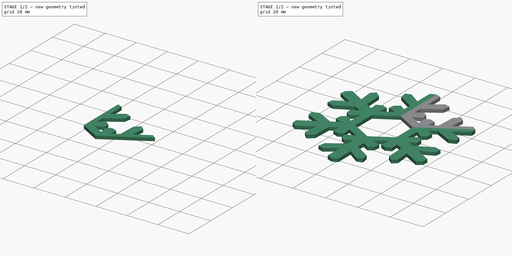
[diagram: build sequence overview — one tinted view per stage of 2, left to right]
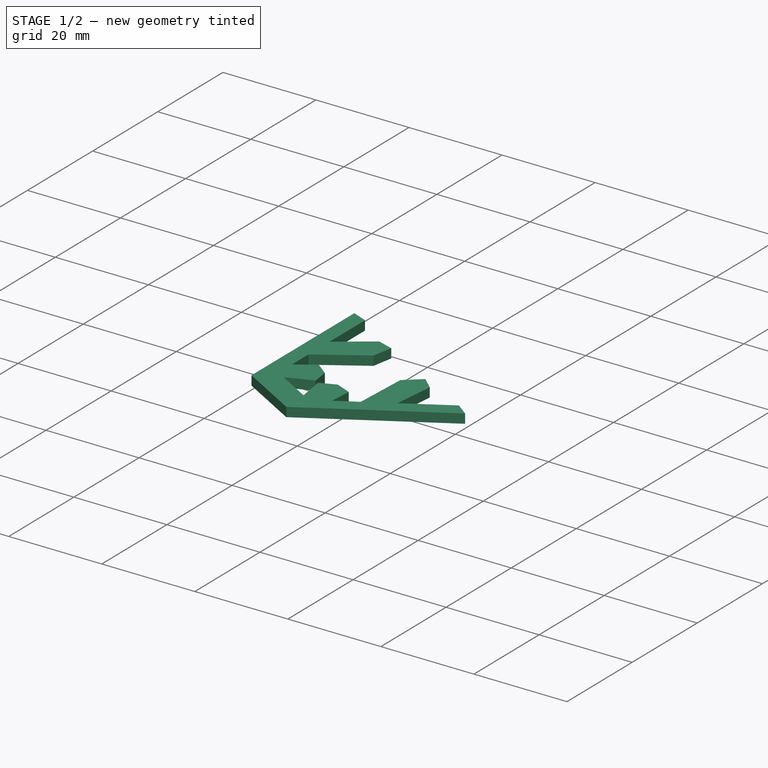
[diagram: stage 1 of 2 — iso view after this stage's code; geometry added in this stage tinted green]
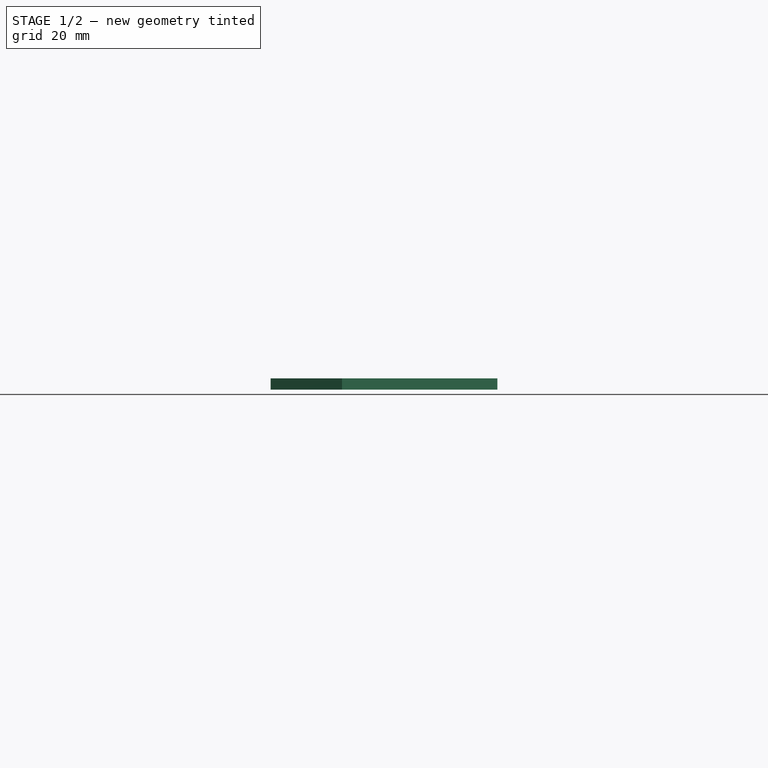
[diagram: stage 1 of 2 — front view after this stage's code; geometry added in this stage tinted green]
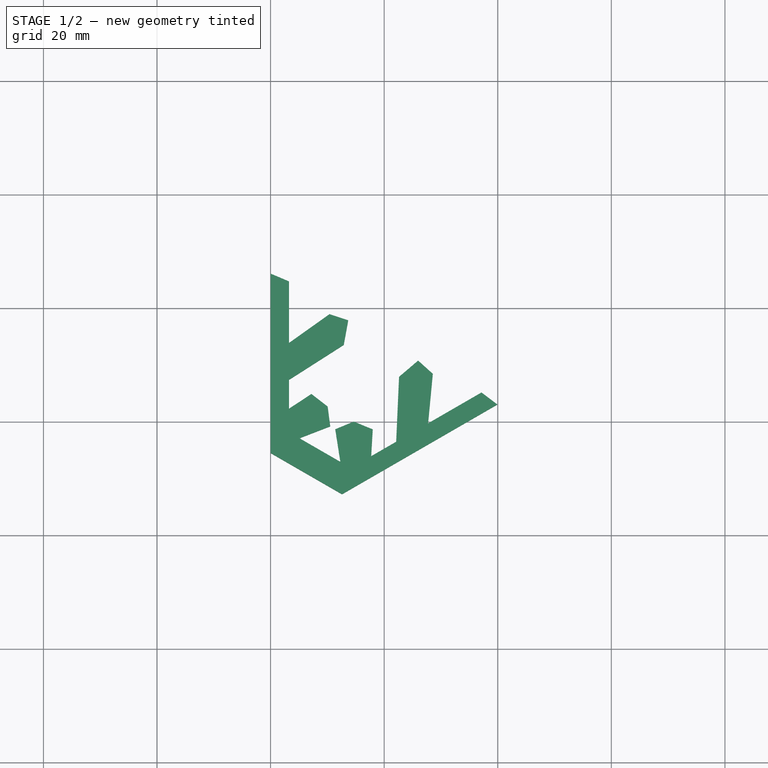
[diagram: stage 1 of 2 — top view after this stage's code; geometry added in this stage tinted green]
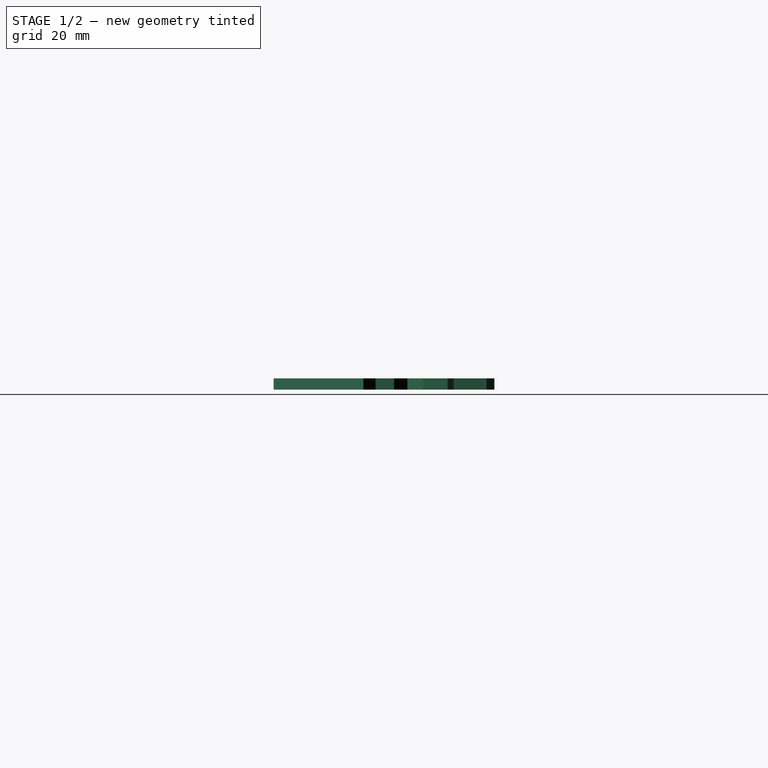
[diagram: stage 1 of 2 — right view after this stage's code; geometry added in this stage tinted green]
FCSTD DOCUMENT  (FreeCAD 0.21R33668 +26 (Git))
Label: snowflake-coin-53299
License: All rights reserved
LicenseURL: http://en.wikipedia.org/wiki/All_rights_reserved
objects: Sketcher::SketchObject×9, App::DocumentObjectGroup×3, PartDesign::Plane×2, Part::Feature×2, Part::FeaturePython×2, App::TextDocument×1, Spreadsheet::Sheet×1, PartDesign::Pad×1, PartDesign::PolarPattern×1, PartDesign::Body×1
note: 19 computed .brp shape members not serialized (recipe doc carries the construction recipe); baked Part::Feature solids carry a one-line shape summary decoded from their .brp

FEATURE [App::TextDocument] Text_document  label="Text document"
  Text = https://publicdomainvectors.org/en/free-clipart/Blue-snowflake/53299.html
FEATURE [Spreadsheet::Sheet] Spreadsheet
  cells = A2='Vector X center; B2='vec_x; C2(dim_vec_x)==-40.84 mm; A3='Vector Y center; B3='vec_y; C3(dim_vec_y)==46.5761 mm; A4='Hexagon circumradius; B4='hex_r; C4(dim_hex_r)==14.5261 mm; A5='Extrude height; B5='ext_h; C5(dim_ext_h)==2.5 mm; D5==2.5 mm; A6='Engrave depth; B6='engrave_h; C6(dim_engrave_h)==dim_ext_h / 2; A7='Pin half-width; B7='pin_w2; C7(dim_pin_w2)==3.24 mm; A8='Pin width; B8='chamfer_r; C8(dim_chamfer_r)==dim_pin_w2 * 2; A9='SVG Scale; B9='svg_scale; C9=0.5; A11='Edge dimple radius; B11='dimple_r; C11(dim_dimple_r)==0.5 mm; A12='Edge dimple count; B12='dimple_count; C12(dim_dimple_count)=64
FEATURE [PartDesign::Plane] DatumPlane  label="BaseXYDatumPlane"
  Length = 98.0294
  MapMode = 5
  ResizeMode = 0
  Support = -> [XY_Plane]
  Width = 109.517
FEATURE [Sketcher::SketchObject] Sketch001  label="CircleSketch"
  FullyConstrained = true
  MapMode = 5
  Support = -> [DatumPlane]
  expr: Constraints[1] = Spreadsheet.dim_hex_r - Spreadsheet.dim_pin_w2
  expr: Constraints[3] = Spreadsheet.dim_hex_r - 1 mm
  sketch-geometry (6):
    g0: Circle CenterX=0 CenterY=0 CenterZ=0 NormalX=0 NormalY=0 NormalZ=1 AngleXU=0 Radius=11.2861
    g1: Circle CenterX=0 CenterY=0 CenterZ=0 NormalX=0 NormalY=0 NormalZ=1 AngleXU=0 Radius=13.5261
    g2: LineSegment StartX=0 StartY=0 StartZ=0 EndX=0 EndY=13.5261 EndZ=0
    g3: LineSegment StartX=0 StartY=0 StartZ=0 EndX=0 EndY=-13.5261 EndZ=0
    g4: LineSegment StartX=0 StartY=0 StartZ=0 EndX=-13.5261 EndY=0 EndZ=0
    g5: LineSegment StartX=0 StartY=0 StartZ=0 EndX=13.5261 EndY=0 EndZ=0
  constraints (16):
    c: Coincident(g0,g-1)
    c: Radius(g0) = 11.2861
    c: Coincident(g1,g0)
    c: Radius(g1) = 13.5261
    c: Coincident(g2,g0)
    c: PointOnObject(g2,g1)
    c: Vertical(g2)
    c: Coincident(g3,g0)
    c: PointOnObject(g3,g1)
    c: Vertical(g3)
    c: Coincident(g4,g0)
    c: PointOnObject(g4,g1)
    c: Horizontal(g4)
    c: Coincident(g5,g0)
    c: PointOnObject(g5,g1)
    c: Horizontal(g5)
FEATURE [PartDesign::Plane] DatumPlane001  label="ProfileYZDatumPlane"
  Length = 105.837
  MapMode = 5
  Placement = pos=(0,0,0) rot=(0.57735,0.57735,0.57735;2.0944rad)
  ResizeMode = 0
  Support = -> [YZ_Plane]
  Width = 63.5833
FEATURE [Sketcher::SketchObject] Sketch  label="CoinProfileSketch"
  FullyConstrained = true
  MapMode = 5
  Placement = pos=(0,0,0) rot=(0.57735,0.57735,0.57735;2.0944rad)
  Support = -> [DatumPlane001]
  expr: Constraints[10] = Spreadsheet.dim_pin_w2
  expr: Constraints[12] = Spreadsheet.dim_ext_h
  expr: Constraints[13] = Spreadsheet.dim_hex_r
  expr: Constraints[14] = Spreadsheet.dim_hex_r
  expr: Constraints[15] = Spreadsheet.dim_ext_h
  expr: Constraints[16] = Spreadsheet.dim_chamfer_r
  sketch-geometry (11):
    g0: LineSegment StartX=3e-16 StartY=0 StartZ=0 EndX=3e-16 EndY=-2.5 EndZ=0
    g1: LineSegment StartX=6.48 StartY=0 StartZ=0 EndX=14.5261 EndY=-3.24 EndZ=0
    g2: LineSegment StartX=14.5261 StartY=-3.24 StartZ=0 EndX=14.5261 EndY=0.74 EndZ=0
    g3: LineSegment StartX=17.7661 StartY=0 StartZ=0 EndX=14.5261 EndY=0 EndZ=0
    g4: LineSegment StartX=14.5261 StartY=0 StartZ=0 EndX=14.5261 EndY=-3.24 EndZ=0
    g5: LineSegment StartX=14.5261 StartY=0.74 StartZ=0 EndX=14.5261 EndY=-2.5 EndZ=0
    g6: LineSegment StartX=3e-16 StartY=0 StartZ=0 EndX=6.48 EndY=0 EndZ=0
    g7: LineSegment StartX=6.48 StartY=0 StartZ=0 EndX=14.5261 EndY=0 EndZ=0
    g8: LineSegment StartX=14.5261 StartY=-2.5 StartZ=0 EndX=6.48 EndY=-2.5 EndZ=0
    g9: LineSegment StartX=6.48 StartY=-2.5 StartZ=0 EndX=0 EndY=-2.5 EndZ=0
    g10: LineSegment StartX=6.48 StartY=-2.5 StartZ=0 EndX=14.5261 EndY=0.74 EndZ=0
  constraints (31):
    c: Vertical(g0)
    c: Coincident(g1,g2)
    c: Vertical(g2)
    c: Horizontal(g3)
    c: Coincident(g4,g3)
    c: Coincident(g4,g1)
    c: Coincident(g5,g2)
    c: Vertical(g5)
    c: Vertical(g4)
    c: Equal(g3,g4)
    c: DistanceY(g5,g5) = 3.24
    c: Equal(g5,g4)
    c: DistanceY(g5,g3) = 2.5
    c: DistanceX(g0,g5) = 14.5261
    c: DistanceX(g-1,g3) = 14.5261
    c: DistanceY(g0,g-1) = 2.5
    c: DistanceX(g1) = 6.48
    c: Coincident(g6,g0)
    c: Coincident(g6,g1)
    c: Horizontal(g6)
    c: Coincident(g7,g1)
    c: Coincident(g7,g3)
    c: Horizontal(g7)
    c: Coincident(g8,g5)
    c: Horizontal(g8)
    c: Coincident(g9,g8)
    c: Coincident(g9,g0)
    c: Horizontal(g9)
    c: Coincident(g10,g9)
    c: Coincident(g10,g2)
    c: Equal(g9,g6)
FEATURE [Sketcher::SketchObject] Sketch002  label="CoinEdgeProfileSketch"
  FullyConstrained = true
  MapMode = 5
  Placement = pos=(0,0,0) rot=(0.57735,0.57735,0.57735;2.0944rad)
  Support = -> [DatumPlane001]
  expr: Constraints[10] = Spreadsheet.dim_hex_r
  expr: Constraints[11] = Spreadsheet.dim_ext_h
  expr: Constraints[17] = Spreadsheet.dim_chamfer_r
  expr: Constraints[6] = Spreadsheet.dim_pin_w2
  expr: Constraints[8] = Spreadsheet.dim_ext_h
  expr: Constraints[9] = Spreadsheet.dim_hex_r
  sketch-geometry (13):
    g0: LineSegment StartX=0 StartY=-1e-16 StartZ=0 EndX=0 EndY=-2.5 EndZ=0
    g1: LineSegment StartX=14.5261 StartY=-3.24 StartZ=0 EndX=14.5261 EndY=0.74 EndZ=0
    g2: LineSegment StartX=14.5261 StartY=-1e-16 StartZ=0 EndX=14.5261 EndY=-3.24 EndZ=0
    g3: LineSegment StartX=14.5261 StartY=0.74 StartZ=0 EndX=14.5261 EndY=-2.5 EndZ=0
    g4: LineSegment StartX=0 StartY=-1e-16 StartZ=0 EndX=13.5261 EndY=-1e-16 EndZ=0
    g5: LineSegment StartX=13.5261 StartY=-1e-16 StartZ=0 EndX=13.5261 EndY=-2.5 EndZ=0
    g6: LineSegment StartX=13.5261 StartY=-1e-16 StartZ=0 EndX=6.48 EndY=-1e-16 EndZ=0
    g7: LineSegment StartX=6.48 StartY=-1e-16 StartZ=0 EndX=14.5261 EndY=-3.24 EndZ=0
    g8: LineSegment StartX=6.48 StartY=-1e-16 StartZ=0 EndX=14.5261 EndY=-1e-16 EndZ=0
    g9: LineSegment StartX=14.5261 StartY=-2.5 StartZ=0 EndX=20.5722 EndY=-2.5 EndZ=0
    g10: LineSegment StartX=13.5261 StartY=-2.5 StartZ=0 EndX=0 EndY=-2.5 EndZ=0
    g11: LineSegment StartX=20.5722 StartY=-2.5 StartZ=0 EndX=14.5261 EndY=0.74 EndZ=0
    g12: LineSegment StartX=20.5722 StartY=-2.5 StartZ=0 EndX=13.5261 EndY=-2.5 EndZ=0
  constraints (36):
    c: Vertical(g0)
    c: Coincident(g0,g4)
    c: Vertical(g1)
    c: Coincident(g3,g1)
    c: Vertical(g3)
    c: Vertical(g2)
    c: DistanceY(g3,g3) = 3.24
    c: Equal(g3,g2)
    c: DistanceY(g3,g2) = 2.5
    c: DistanceX(g0,g3) = 14.5261
    c: DistanceX(g-1,g2) = 14.5261
    c: DistanceY(g0,g-1) = 2.5
    c: Horizontal(g4)
    c: Vertical(g5)
    c: DistanceX(g4,g2) = 1
    c: Coincident(g6,g5)
    c: Horizontal(g6)
    c: DistanceX(g0,g6) = 6.48
    c: Coincident(g7,g6)
    c: Coincident(g7,g1)
    c: Coincident(g8,g6)
    c: Coincident(g8,g2)
    c: Horizontal(g8)
    c: Coincident(g4,g5)
    c: Coincident(g2,g1)
    c: Coincident(g9,g3)
    c: Horizontal(g9)
    c: Coincident(g10,g5)
    c: Coincident(g10,g0)
    c: Horizontal(g10)
    c: Coincident(g11,g9)
    c: Coincident(g11,g1)
    c: Coincident(g12,g11)
    c: Coincident(g12,g5)
    c: Horizontal(g12)
    c: Equal(g12,g6)
FEATURE [Sketcher::SketchObject] Sketch004  label="EdgeDimpleSketch"
  FullyConstrained = true
  MapMode = 5
  Support = -> [DatumPlane]
  expr: Constraints[2] = Spreadsheet.dim_hex_r
  sketch-geometry (2):
    g0: LineSegment StartX=0 StartY=0 StartZ=0 EndX=14.5261 EndY=0 EndZ=0
    g1: Circle CenterX=14.5261 CenterY=0 CenterZ=0 NormalX=0 NormalY=0 NormalZ=1 AngleXU=0 Radius=0.5
  constraints (5):
    c: Horizontal(g0)
    c: Coincident(g1,g0)
    c: DistanceX(g0,g0) = 14.5261
    c: Coincident(g0,g-1)
    c: Radius(g1) = 0.5
FEATURE [App::DocumentObjectGroup] Group008  label="VectorDetailGroup"
FEATURE [Part::Feature] path2909
  shape: bbox 161.6 x 184.5 x 2e-07 mm, 0 faces, 0 solids (baked)
FEATURE [Part::Feature] path2909001
  shape: bbox 50.18 x 57.94 x 2e-07 mm, 0 faces, 0 solids (baked)
FEATURE [App::DocumentObjectGroup] Group007  label="VectorOutlineGroup"
  Group = -> [path2909,path2909001]
FEATURE [Part::FeaturePython] Clone  label="path2909-050"  # Draft clone (typed FeaturePython)
  AttacherType = Attacher::AttachEngine3D
  Fuse = false
  Objects = -> [path2909]
  Placement = pos=(-40.84,46.5761,0) rot=(0,0,1;0rad)
  Scale = (0.5,0.5,0.5)
  expr: .Placement.Base.x = Spreadsheet.dim_vec_x
  expr: .Placement.Base.y = Spreadsheet.dim_vec_y
FEATURE [Part::FeaturePython] Clone001  label="pentpath-050"  # Draft clone (typed FeaturePython)
  AttacherType = Attacher::AttachEngine3D
  Fuse = false
  Objects = -> [path2909001]
  Scale = (0.5,0.5,0.5)
FEATURE [App::DocumentObjectGroup] Group  label="ResizeGroup"
  Group = -> [Clone,Clone001]
FEATURE [Sketcher::SketchObject] Sketch005  label="VectorOutlineSketch"
  FullyConstrained = false
  MapMode = 5
  Support = -> [DatumPlane]
  sketch-geometry (139):
    g0: BSplineCurve PolesCount=2 KnotsCount=2 Degree=1 IsPeriodic=0
    g1: BSplineCurve PolesCount=2 KnotsCount=2 Degree=1 IsPeriodic=0
    g2: BSplineCurve PolesCount=2 KnotsCount=2 Degree=1 IsPeriodic=0
    g3: BSplineCurve PolesCount=2 KnotsCount=2 Degree=1 IsPeriodic=0
    g4: BSplineCurve PolesCount=2 KnotsCount=2 Degree=1 IsPeriodic=0
    g5: BSplineCurve PolesCount=2 KnotsCount=2 Degree=1 IsPeriodic=0
    g6: BSplineCurve PolesCount=2 KnotsCount=2 Degree=1 IsPeriodic=0
    g7: BSplineCurve PolesCount=2 KnotsCount=2 Degree=1 IsPeriodic=0
    g8: BSplineCurve PolesCount=2 KnotsCount=2 Degree=1 IsPeriodic=0
    g9: BSplineCurve PolesCount=2 KnotsCount=2 Degree=1 IsPeriodic=0
    g10: BSplineCurve PolesCount=2 KnotsCount=2 Degree=1 IsPeriodic=0
    g11: BSplineCurve PolesCount=2 KnotsCount=2 Degree=1 IsPeriodic=0
    g12: BSplineCurve PolesCount=2 KnotsCount=2 Degree=1 IsPeriodic=0
    g13: BSplineCurve PolesCount=2 KnotsCount=2 Degree=1 IsPeriodic=0
    g14: BSplineCurve PolesCount=2 KnotsCount=2 Degree=1 IsPeriodic=0
    g15: BSplineCurve PolesCount=2 KnotsCount=2 Degree=1 IsPeriodic=0
    g16: BSplineCurve PolesCount=2 KnotsCount=2 Degree=1 IsPeriodic=0
    g17: BSplineCurve PolesCount=2 KnotsCount=2 Degree=1 IsPeriodic=0
    g18: BSplineCurve PolesCount=2 KnotsCount=2 Degree=1 IsPeriodic=0
    g19: BSplineCurve PolesCount=2 KnotsCount=2 Degree=1 IsPeriodic=0
    g20: BSplineCurve PolesCount=2 KnotsCount=2 Degree=1 IsPeriodic=0
    g21: BSplineCurve PolesCount=2 KnotsCount=2 Degree=1 IsPeriodic=0
    g22: BSplineCurve PolesCount=2 KnotsCount=2 Degree=1 IsPeriodic=0
    g23: BSplineCurve PolesCount=2 KnotsCount=2 Degree=1 IsPeriodic=0
    g24: BSplineCurve PolesCount=2 KnotsCount=2 Degree=1 IsPeriodic=0
    g25: BSplineCurve PolesCount=2 KnotsCount=2 Degree=1 IsPeriodic=0
    g26: BSplineCurve PolesCount=2 KnotsCount=2 Degree=1 IsPeriodic=0
    g27: BSplineCurve PolesCount=2 KnotsCount=2 Degree=1 IsPeriodic=0
    g28: BSplineCurve PolesCount=2 KnotsCount=2 Degree=1 IsPeriodic=0
    g29: BSplineCurve PolesCount=2 KnotsCount=2 Degree=1 IsPeriodic=0
    g30: BSplineCurve PolesCount=2 KnotsCount=2 Degree=1 IsPeriodic=0
    g31: BSplineCurve PolesCount=2 KnotsCount=2 Degree=1 IsPeriodic=0
    g32: BSplineCurve PolesCount=2 KnotsCount=2 Degree=1 IsPeriodic=0
    g33: BSplineCurve PolesCount=2 KnotsCount=2 Degree=1 IsPeriodic=0
    g34: BSplineCurve PolesCount=2 KnotsCount=2 Degree=1 IsPeriodic=0
    g35: BSplineCurve PolesCount=2 KnotsCount=2 Degree=1 IsPeriodic=0
    g36: BSplineCurve PolesCount=2 KnotsCount=2 Degree=1 IsPeriodic=0
    g37: BSplineCurve PolesCount=2 KnotsCount=2 Degree=1 IsPeriodic=0
    g38: BSplineCurve PolesCount=2 KnotsCount=2 Degree=1 IsPeriodic=0
    g39: BSplineCurve PolesCount=2 KnotsCount=2 Degree=1 IsPeriodic=0
    g40: BSplineCurve PolesCount=2 KnotsCount=2 Degree=1 IsPeriodic=0
    g41: BSplineCurve PolesCount=2 KnotsCount=2 Degree=1 IsPeriodic=0
    g42: BSplineCurve PolesCount=2 KnotsCount=2 Degree=1 IsPeriodic=0
    g43: BSplineCurve PolesCount=2 KnotsCount=2 Degree=1 IsPeriodic=0
    g44: BSplineCurve PolesCount=2 KnotsCount=2 Degree=1 IsPeriodic=0
    g45: BSplineCurve PolesCount=2 KnotsCount=2 Degree=1 IsPeriodic=0
    g46: BSplineCurve PolesCount=2 KnotsCount=2 Degree=1 IsPeriodic=0
    g47: BSplineCurve PolesCount=2 KnotsCount=2 Degree=1 IsPeriodic=0
    g48: BSplineCurve PolesCount=2 KnotsCount=2 Degree=1 IsPeriodic=0
    g49: BSplineCurve PolesCount=2 KnotsCount=2 Degree=1 IsPeriodic=0
    g50: BSplineCurve PolesCount=2 KnotsCount=2 Degree=1 IsPeriodic=0
    g51: BSplineCurve PolesCount=2 KnotsCount=2 Degree=1 IsPeriodic=0
    g52: BSplineCurve PolesCount=2 KnotsCount=2 Degree=1 IsPeriodic=0
    g53: BSplineCurve PolesCount=2 KnotsCount=2 Degree=1 IsPeriodic=0
    g54: BSplineCurve PolesCount=2 KnotsCount=2 Degree=1 IsPeriodic=0
    g55: BSplineCurve PolesCount=2 KnotsCount=2 Degree=1 IsPeriodic=0
    g56: BSplineCurve PolesCount=2 KnotsCount=2 Degree=1 IsPeriodic=0
    g57: BSplineCurve PolesCount=2 KnotsCount=2 Degree=1 IsPeriodic=0
    g58: BSplineCurve PolesCount=2 KnotsCount=2 Degree=1 IsPeriodic=0
    g59: BSplineCurve PolesCount=2 KnotsCount=2 Degree=1 IsPeriodic=0
    g60: BSplineCurve PolesCount=2 KnotsCount=2 Degree=1 IsPeriodic=0
    g61: BSplineCurve PolesCount=2 KnotsCount=2 Degree=1 IsPeriodic=0
    g62: BSplineCurve PolesCount=2 KnotsCount=2 Degree=1 IsPeriodic=0
    g63: BSplineCurve PolesCount=2 KnotsCount=2 Degree=1 IsPeriodic=0
    g64: BSplineCurve PolesCount=2 KnotsCount=2 Degree=1 IsPeriodic=0
    g65: BSplineCurve PolesCount=2 KnotsCount=2 Degree=1 IsPeriodic=0
    g66: BSplineCurve PolesCount=2 KnotsCount=2 Degree=1 IsPeriodic=0
    g67: BSplineCurve PolesCount=2 KnotsCount=2 Degree=1 IsPeriodic=0
    g68: BSplineCurve PolesCount=2 KnotsCount=2 Degree=1 IsPeriodic=0
    g69: BSplineCurve PolesCount=2 KnotsCount=2 Degree=1 IsPeriodic=0
    g70: BSplineCurve PolesCount=2 KnotsCount=2 Degree=1 IsPeriodic=0
    g71: BSplineCurve PolesCount=2 KnotsCount=2 Degree=1 IsPeriodic=0
    g72: BSplineCurve PolesCount=2 KnotsCount=2 Degree=1 IsPeriodic=0
    g73: BSplineCurve PolesCount=2 KnotsCount=2 Degree=1 IsPeriodic=0
    g74: BSplineCurve PolesCount=2 KnotsCount=2 Degree=1 IsPeriodic=0
    g75: BSplineCurve PolesCount=2 KnotsCount=2 Degree=1 IsPeriodic=0
    g76: BSplineCurve PolesCount=2 KnotsCount=2 Degree=1 IsPeriodic=0
    g77: BSplineCurve PolesCount=2 KnotsCount=2 Degree=1 IsPeriodic=0
    g78: BSplineCurve PolesCount=2 KnotsCount=2 Degree=1 IsPeriodic=0
    g79: BSplineCurve PolesCount=2 KnotsCount=2 Degree=1 IsPeriodic=0
    g80: BSplineCurve PolesCount=2 KnotsCount=2 Degree=1 IsPeriodic=0
    g81: BSplineCurve PolesCount=2 KnotsCount=2 Degree=1 IsPeriodic=0
    g82: BSplineCurve PolesCount=2 KnotsCount=2 Degree=1 IsPeriodic=0
    g83: BSplineCurve PolesCount=2 KnotsCount=2 Degree=1 IsPeriodic=0
    g84: BSplineCurve PolesCount=2 KnotsCount=2 Degree=1 IsPeriodic=0
    g85: BSplineCurve PolesCount=2 KnotsCount=2 Degree=1 IsPeriodic=0
    g86: BSplineCurve PolesCount=2 KnotsCount=2 Degree=1 IsPeriodic=0
    g87: BSplineCurve PolesCount=2 KnotsCount=2 Degree=1 IsPeriodic=0
    g88: BSplineCurve PolesCount=2 KnotsCount=2 Degree=1 IsPeriodic=0
    g89: BSplineCurve PolesCount=2 KnotsCount=2 Degree=1 IsPeriodic=0
    g90: BSplineCurve PolesCount=2 KnotsCount=2 Degree=1 IsPeriodic=0
    g91: BSplineCurve PolesCount=2 KnotsCount=2 Degree=1 IsPeriodic=0
    g92: BSplineCurve PolesCount=2 KnotsCount=2 Degree=1 IsPeriodic=0
    g93: BSplineCurve PolesCount=2 KnotsCount=2 Degree=1 IsPeriodic=0
    g94: BSplineCurve PolesCount=2 KnotsCount=2 Degree=1 IsPeriodic=0
    g95: BSplineCurve PolesCount=2 KnotsCount=2 Degree=1 IsPeriodic=0
    g96: BSplineCurve PolesCount=2 KnotsCount=2 Degree=1 IsPeriodic=0
    g97: BSplineCurve PolesCount=2 KnotsCount=2 Degree=1 IsPeriodic=0
    g98: BSplineCurve PolesCount=2 KnotsCount=2 Degree=1 IsPeriodic=0
    g99: BSplineCurve PolesCount=2 KnotsCount=2 Degree=1 IsPeriodic=0
    g100: BSplineCurve PolesCount=2 KnotsCount=2 Degree=1 IsPeriodic=0
    g101: BSplineCurve PolesCount=2 KnotsCount=2 Degree=1 IsPeriodic=0
    g102: BSplineCurve PolesCount=2 KnotsCount=2 Degree=1 IsPeriodic=0
    g103: BSplineCurve PolesCount=2 KnotsCount=2 Degree=1 IsPeriodic=0
    g104: BSplineCurve PolesCount=2 KnotsCount=2 Degree=1 IsPeriodic=0
    g105: BSplineCurve PolesCount=2 KnotsCount=2 Degree=1 IsPeriodic=0
    g106: BSplineCurve PolesCount=2 KnotsCount=2 Degree=1 IsPeriodic=0
    g107: BSplineCurve PolesCount=2 KnotsCount=2 Degree=1 IsPeriodic=0
    g108: BSplineCurve PolesCount=2 KnotsCount=2 Degree=1 IsPeriodic=0
    g109: BSplineCurve PolesCount=2 KnotsCount=2 Degree=1 IsPeriodic=0
    g110: BSplineCurve PolesCount=2 KnotsCount=2 Degree=1 IsPeriodic=0
    g111: BSplineCurve PolesCount=2 KnotsCount=2 Degree=1 IsPeriodic=0
    g112: BSplineCurve PolesCount=2 KnotsCount=2 Degree=1 IsPeriodic=0
    g113: BSplineCurve PolesCount=2 KnotsCount=2 Degree=1 IsPeriodic=0
    g114: BSplineCurve PolesCount=2 KnotsCount=2 Degree=1 IsPeriodic=0
    g115: BSplineCurve PolesCount=2 KnotsCount=2 Degree=1 IsPeriodic=0
    g116: BSplineCurve PolesCount=2 KnotsCount=2 Degree=1 IsPeriodic=0
    g117: BSplineCurve PolesCount=2 KnotsCount=2 Degree=1 IsPeriodic=0
    g118: BSplineCurve PolesCount=2 KnotsCount=2 Degree=1 IsPeriodic=0
    g119: BSplineCurve PolesCount=2 KnotsCount=2 Degree=1 IsPeriodic=0
    g120: BSplineCurve PolesCount=2 KnotsCount=2 Degree=1 IsPeriodic=0
    g121: BSplineCurve PolesCount=2 KnotsCount=2 Degree=1 IsPeriodic=0
    g122: BSplineCurve PolesCount=2 KnotsCount=2 Degree=1 IsPeriodic=0
    g123: BSplineCurve PolesCount=2 KnotsCount=2 Degree=1 IsPeriodic=0
    g124: BSplineCurve PolesCount=2 KnotsCount=2 Degree=1 IsPeriodic=0
    g125: BSplineCurve PolesCount=2 KnotsCount=2 Degree=1 IsPeriodic=0
    g126: BSplineCurve PolesCount=2 KnotsCount=2 Degree=1 IsPeriodic=0
    g127: BSplineCurve PolesCount=2 KnotsCount=2 Degree=1 IsPeriodic=0
    g128: BSplineCurve PolesCount=2 KnotsCount=2 Degree=1 IsPeriodic=0
    g129: BSplineCurve PolesCount=2 KnotsCount=2 Degree=1 IsPeriodic=0
    g130: BSplineCurve PolesCount=2 KnotsCount=2 Degree=1 IsPeriodic=0
    g131: BSplineCurve PolesCount=2 KnotsCount=2 Degree=1 IsPeriodic=0
    g132: BSplineCurve PolesCount=2 KnotsCount=2 Degree=1 IsPeriodic=0
    g133: BSplineCurve PolesCount=2 KnotsCount=2 Degree=1 IsPeriodic=0
    g134: BSplineCurve PolesCount=2 KnotsCount=2 Degree=1 IsPeriodic=0
    g135: BSplineCurve PolesCount=2 KnotsCount=2 Degree=1 IsPeriodic=0
    g136: BSplineCurve PolesCount=2 KnotsCount=2 Degree=1 IsPeriodic=0
    g137: BSplineCurve PolesCount=2 KnotsCount=2 Degree=1 IsPeriodic=0
    g138: BSplineCurve PolesCount=2 KnotsCount=2 Degree=1 IsPeriodic=0
  constraints (139):
    c: Coincident(g0,g1)
    c: Coincident(g1,g2)
    c: Coincident(g2,g3)
    c: Coincident(g3,g4)
    c: Coincident(g4,g5)
    c: Coincident(g5,g6)
    c: Coincident(g6,g7)
    c: Coincident(g7,g8)
    c: Coincident(g8,g9)
    c: Coincident(g9,g10)
    c: Coincident(g10,g11)
    c: Coincident(g11,g12)
    c: Coincident(g12,g13)
    c: Coincident(g13,g14)
    c: Coincident(g14,g15)
    c: Coincident(g15,g16)
    c: Coincident(g16,g17)
    c: Coincident(g17,g18)
    c: Coincident(g18,g19)
    c: Coincident(g19,g20)
    c: Coincident(g20,g21)
    c: Coincident(g21,g22)
    c: Coincident(g22,g23)
    c: Coincident(g23,g24)
    c: Coincident(g24,g25)
    c: Coincident(g25,g26)
    c: Coincident(g26,g27)
    c: Coincident(g27,g28)
    c: Coincident(g28,g29)
    c: Coincident(g29,g30)
    c: Coincident(g30,g31)
    c: Coincident(g31,g32)
    c: Coincident(g32,g33)
    c: Coincident(g33,g34)
    c: Coincident(g34,g35)
    c: Coincident(g35,g36)
    c: Coincident(g36,g37)
    c: Coincident(g37,g38)
    c: Coincident(g38,g39)
    c: Coincident(g39,g40)
    c: Coincident(g40,g41)
    c: Coincident(g41,g42)
    c: Coincident(g42,g43)
    c: Coincident(g43,g44)
    c: Coincident(g44,g45)
    c: Coincident(g45,g46)
    c: Coincident(g46,g47)
    c: Coincident(g47,g48)
    c: Coincident(g48,g49)
    c: Coincident(g49,g50)
    c: Coincident(g50,g51)
    c: Coincident(g51,g52)
    c: Coincident(g52,g53)
    c: Coincident(g53,g54)
    c: Coincident(g54,g55)
    c: Coincident(g55,g56)
    c: Coincident(g56,g57)
    c: Coincident(g57,g58)
    c: Coincident(g58,g59)
    c: Coincident(g59,g60)
    c: Coincident(g60,g61)
    c: Coincident(g61,g62)
    c: Coincident(g62,g63)
    c: Coincident(g63,g64)
    c: Coincident(g64,g65)
    c: Coincident(g65,g66)
    c: Coincident(g66,g67)
    c: Coincident(g67,g68)
    c: Coincident(g68,g69)
    c: Coincident(g69,g70)
    c: Coincident(g70,g71)
    c: Coincident(g71,g72)
    c: Coincident(g72,g73)
    c: Coincident(g73,g74)
    c: Coincident(g74,g75)
    c: Coincident(g75,g76)
    c: Coincident(g76,g77)
    c: Coincident(g77,g78)
    c: Coincident(g78,g79)
    c: Coincident(g79,g80)
    c: Coincident(g80,g81)
    c: Coincident(g81,g82)
    c: Coincident(g82,g83)
    c: Coincident(g83,g84)
    c: Coincident(g84,g85)
    c: Coincident(g85,g86)
    c: Coincident(g86,g87)
    c: Coincident(g87,g88)
    c: Coincident(g88,g89)
    c: Coincident(g89,g90)
    c: Coincident(g90,g91)
    c: Coincident(g91,g92)
    c: Coincident(g92,g93)
    c: Coincident(g93,g94)
    c: Coincident(g94,g95)
    c: Coincident(g95,g96)
    c: Coincident(g96,g97)
    c: Coincident(g97,g98)
    c: Coincident(g98,g99)
    c: Coincident(g99,g100)
    c: Coincident(g100,g101)
    c: Coincident(g101,g102)
    c: Coincident(g102,g103)
    c: Coincident(g103,g104)
    c: Coincident(g104,g105)
    c: Coincident(g105,g106)
    c: Coincident(g106,g107)
    c: Coincident(g107,g108)
    c: Coincident(g108,g109)
    c: Coincident(g109,g110)
    c: Coincident(g110,g111)
    c: Coincident(g111,g112)
    c: Coincident(g112,g113)
    c: Coincident(g113,g114)
    c: Coincident(g114,g115)
    c: Coincident(g115,g116)
    c: Coincident(g116,g117)
    c: Coincident(g117,g118)
    c: Coincident(g118,g119)
    c: Coincident(g119,g120)
    c: Coincident(g120,g121)
    c: Coincident(g121,g122)
    c: Coincident(g122,g123)
    c: Coincident(g123,g124)
    c: Coincident(g124,g125)
    c: Coincident(g125,g126)
    c: Coincident(g126,g127)
    c: Coincident(g127,g128)
    c: Coincident(g128,g129)
    c: Coincident(g129,g130)
    c: Coincident(g130,g131)
    c: Coincident(g131,g132)
    c: Coincident(g132,g133)
    c: Coincident(g133,g134)
    c: Coincident(g134,g135)
    c: Coincident(g135,g136)
    c: Coincident(g136,g137)
    c: Coincident(g137,g138)
    c: Coincident(g138,g0)
FEATURE [Sketcher::SketchObject] Sketch006  label="TestHexagonSketch"
  FullyConstrained = true
  MapMode = 5
  Support = -> [DatumPlane]
  sketch-geometry (12):
    g0: LineSegment StartX=53.42 StartY=-53.8392 StartZ=0 EndX=53.42 EndY=-39.3131 EndZ=0
    g1: LineSegment StartX=53.42 StartY=-39.3131 StartZ=0 EndX=40.84 EndY=-32.05 EndZ=0
    g2: LineSegment StartX=40.84 StartY=-32.05 StartZ=0 EndX=28.26 EndY=-39.3131 EndZ=0
    g3: LineSegment StartX=28.26 StartY=-39.3131 StartZ=0 EndX=28.26 EndY=-53.8392 EndZ=0
    g4: LineSegment StartX=28.26 StartY=-53.8392 StartZ=0 EndX=40.84 EndY=-61.1023 EndZ=0
    g5: LineSegment StartX=40.84 StartY=-61.1023 StartZ=0 EndX=53.42 EndY=-53.8392 EndZ=0
    g6: Circle CenterX=40.84 CenterY=-46.5761 CenterZ=0 NormalX=0 NormalY=0 NormalZ=1 AngleXU=0 Radius=14.5261
    g7: LineSegment StartX=40.84 StartY=-32.05 StartZ=0 EndX=40.84 EndY=0 EndZ=0
    g8: LineSegment StartX=40.84 StartY=-46.5761 StartZ=0 EndX=0 EndY=-46.5761 EndZ=0
    g9: LineSegment StartX=28.26 StartY=-53.8392 StartZ=0 EndX=0 EndY=-53.8392 EndZ=0
    g10: LineSegment StartX=28.26 StartY=-39.3131 StartZ=0 EndX=28.26 EndY=0 EndZ=0
    g11: LineSegment StartX=40.84 StartY=-32.05 StartZ=0 EndX=0 EndY=-32.05 EndZ=0
  constraints (36):
    c: Coincident(g0,g1)
    c: Coincident(g1,g2)
    c: Coincident(g2,g3)
    c: Coincident(g3,g4)
    c: Coincident(g4,g5)
    c: Coincident(g5,g0)
    c: Equal(g0, g1-g5) x5
    c: PointOnObject(g0,g6)
    c: PointOnObject(g1,g6)
    c: PointOnObject(g2,g6)
    c: PointOnObject(g3,g6)
    c: PointOnObject(g4,g6)
    c: PointOnObject(g5,g6)
    c: Vertical(g0)
    c: Coincident(g7,g1)
    c: PointOnObject(g7,g-1)
    c: Vertical(g7)
    c: Coincident(g8,g6)
    c: PointOnObject(g8,g-2)
    c: Horizontal(g8)
    c: DistanceY(g7,g7) = 32.05
    c: DistanceY(g3,g3) = 14.5261
    c: Coincident(g9,g3)
    c: PointOnObject(g9,g-2)
    c: Horizontal(g9)
    c: DistanceX(g9,g9) = 28.26
    c: Coincident(g10,g2)
    c: PointOnObject(g10,g-1)
    c: Vertical(g10)
    c: Coincident(g11,g1)
    c: PointOnObject(g11,g-2)
    c: Horizontal(g11)
    c: DistanceX(g11,g11) = 40.84
    c: DistanceX(g8,g6) = 40.84
    c: DistanceY(g6,g7) = 46.5761
    c: Distance(g3,g6) = 14.5261
FEATURE [Sketcher::SketchObject] Sketch007  label="HexagonSketch"
  FullyConstrained = true
  MapMode = 5
  Support = -> [DatumPlane]
  expr: Constraints[19] = Spreadsheet.dim_hex_r
  sketch-geometry (7):
    g0: LineSegment StartX=9.0719e-12 StartY=14.5261 StartZ=0 EndX=-12.58 EndY=7.26305 EndZ=0
    g1: LineSegment StartX=-12.58 StartY=7.26305 StartZ=0 EndX=-12.58 EndY=-7.26305 EndZ=0
    g2: LineSegment StartX=-12.58 StartY=-7.26305 StartZ=0 EndX=1.57598e-11 EndY=-14.5261 EndZ=0
    g3: LineSegment StartX=1.57598e-11 StartY=-14.5261 StartZ=0 EndX=12.58 EndY=-7.26305 EndZ=0
    g4: LineSegment StartX=12.58 StartY=-7.26305 StartZ=0 EndX=12.58 EndY=7.26305 EndZ=0
    g5: LineSegment StartX=12.58 StartY=7.26305 StartZ=0 EndX=9.0719e-12 EndY=14.5261 EndZ=0
    g6: Circle CenterX=0 CenterY=0 CenterZ=0 NormalX=0 NormalY=0 NormalZ=1 AngleXU=0 Radius=14.5261
  constraints (16):
    c: Coincident(g0,g1)
    c: Coincident(g1,g2)
    c: Coincident(g2,g3)
    c: Coincident(g3,g4)
    c: Coincident(g4,g5)
    c: Coincident(g5,g0)
    c: Equal(g0, g1-g5) x5
    c: PointOnObject(g0,g6)
    c: PointOnObject(g1,g6)
    c: PointOnObject(g2,g6)
    c: PointOnObject(g3,g6)
    c: PointOnObject(g4,g6)
    c: PointOnObject(g5,g6)
    c: Coincident(g6,g-1)
    c: Vertical(g4)
    c: DistanceY(g1,g1) = 14.5261
FEATURE [Sketcher::SketchObject] Sketch008  label="SnowflakeOutlineSketch"
  FullyConstrained = true
  MapMode = 5
  Support = -> [DatumPlane]
  expr: Constraints[18] = Spreadsheet.dim_hex_r
  sketch-geometry (66):
    g0: LineSegment StartX=-0.00337745 StartY=14.5267 StartZ=0 EndX=-12.5818 EndY=7.2611 EndZ=0
    g1: LineSegment StartX=-12.5818 StartY=7.2611 StartZ=0 EndX=-12.5796 EndY=-7.265 EndZ=0
    g2: LineSegment StartX=-12.5796 StartY=-7.265 StartZ=0 EndX=0.00112582 EndY=-14.5268 EndZ=0
    g3: LineSegment StartX=0.00112582 StartY=-14.5268 StartZ=0 EndX=12.5807 EndY=-7.26305 EndZ=0
    g4: LineSegment StartX=12.5807 StartY=-7.26305 StartZ=0 EndX=12.5807 EndY=7.26305 EndZ=0
    g5: Circle CenterX=0 CenterY=0 CenterZ=0 NormalX=0 NormalY=0 NormalZ=1 AngleXU=0 Radius=14.5268
    g6: LineSegment StartX=-0.00337745 StartY=46.1267 StartZ=0 EndX=3.23662 EndY=44.7567 EndZ=0
    g7: LineSegment StartX=3.23662 StartY=44.7567 StartZ=0 EndX=3.23662 EndY=33.9067 EndZ=0
    g8: LineSegment StartX=3.23662 StartY=33.9067 StartZ=0 EndX=10.3672 EndY=38.9779 EndZ=0
    g9: LineSegment StartX=10.3672 StartY=38.9779 StartZ=0 EndX=13.6784 EndY=37.9029 EndZ=0
    g10: LineSegment StartX=13.6784 StartY=37.9029 StartZ=0 EndX=12.8825 EndY=33.5637 EndZ=0
    g11: LineSegment StartX=12.8825 StartY=33.5637 StartZ=0 EndX=3.23662 EndY=27.4067 EndZ=0
    g12: LineSegment StartX=3.23662 StartY=27.4067 StartZ=0 EndX=3.23662 EndY=22.3267 EndZ=0
    g13: LineSegment StartX=3.23662 StartY=22.3267 StartZ=0 EndX=7.18818 EndY=24.9264 EndZ=0
    g14: LineSegment StartX=7.18818 StartY=24.9264 StartZ=0 EndX=10.0479 EndY=22.7141 EndZ=0
    g15: LineSegment StartX=10.0479 StartY=22.7141 StartZ=0 EndX=10.5061 EndY=19.221 EndZ=0
    g16: LineSegment StartX=10.5061 StartY=19.221 StartZ=0 EndX=5.08662 EndY=17.1267 EndZ=0
    g17: LineSegment StartX=12.2862 StartY=12.9711 StartZ=0 EndX=11.389 EndY=18.7114 EndZ=0
    g18: LineSegment StartX=11.389 StartY=18.7114 StartZ=0 EndX=14.6429 EndY=20.0618 EndZ=0
    g19: LineSegment StartX=14.6429 StartY=20.0618 StartZ=0 EndX=17.9889 EndY=18.6921 EndZ=0
    g20: LineSegment StartX=17.9889 StartY=18.6921 StartZ=0 EndX=17.7143 EndY=13.97 EndZ=0
    g21: LineSegment StartX=17.7143 StartY=13.97 StartZ=0 EndX=22.1132 EndY=16.5109 EndZ=0
    g22: LineSegment StartX=22.1132 StartY=16.5109 StartZ=0 EndX=22.62 EndY=27.943 EndZ=0
    g23: LineSegment StartX=22.62 StartY=27.943 StartZ=0 EndX=25.9793 EndY=30.8026 EndZ=0
    g24: LineSegment StartX=25.9793 StartY=30.8026 StartZ=0 EndX=28.5664 EndY=28.4732 EndZ=0
    g25: LineSegment StartX=28.5664 StartY=28.4732 StartZ=0 EndX=27.7417 EndY=19.7621 EndZ=0
    g26: LineSegment StartX=27.7417 StartY=19.7621 StartZ=0 EndX=37.137 EndY=25.189 EndZ=0
    g27: LineSegment StartX=37.137 StartY=25.189 StartZ=0 EndX=39.9439 EndY=23.0687 EndZ=0
    g28: LineSegment StartX=5.08662 StartY=17.1267 StartZ=0 EndX=8.68642 EndY=15.0489 EndZ=0
    g29: LineSegment StartX=8.68642 StartY=15.0489 StartZ=0 EndX=12.2862 EndY=12.9711 EndZ=0
    g30: LineSegment StartX=12.5807 StartY=7.26305 StartZ=0 EndX=6.28867 EndY=10.8949 EndZ=0
    g31: LineSegment StartX=6.28867 StartY=10.8949 StartZ=0 EndX=-0.00337745 EndY=14.5267 EndZ=0
    g32: LineSegment StartX=8.68642 StartY=15.0489 StartZ=0 EndX=6.28867 EndY=10.8949 EndZ=0
    g33: LineSegment StartX=-0.00337745 StartY=44.7567 StartZ=0 EndX=-0.00337745 EndY=46.1267 EndZ=0
    g34: LineSegment StartX=-0.00337745 StartY=33.9067 StartZ=0 EndX=-0.00337745 EndY=44.7567 EndZ=0
    g35: LineSegment StartX=-0.00337745 StartY=27.4067 StartZ=0 EndX=-0.00337745 EndY=33.9067 EndZ=0
    g36: LineSegment StartX=29.3623 StartY=16.9565 StartZ=0 EndX=23.7338 EndY=13.7054 EndZ=0
    g37: LineSegment StartX=39.9439 StartY=23.0687 StartZ=0 EndX=38.7575 EndY=22.3835 EndZ=0
    g38: LineSegment StartX=38.7575 StartY=22.3835 StartZ=0 EndX=29.3623 EndY=16.9565 EndZ=0
    g39: LineSegment StartX=23.7338 StartY=13.7054 StartZ=0 EndX=19.3349 EndY=11.1644 EndZ=0
    g40: LineSegment StartX=19.3349 StartY=11.1644 StartZ=0 EndX=14.8321 EndY=8.56352 EndZ=0
    g41: LineSegment StartX=14.8321 StartY=8.56352 StartZ=0 EndX=12.5807 EndY=7.26305 EndZ=0
    g42: LineSegment StartX=-0.00337745 StartY=22.3267 StartZ=0 EndX=-0.00337745 EndY=27.4067 EndZ=0
    g43: LineSegment StartX=-0.00337745 StartY=14.5267 StartZ=0 EndX=-0.00337745 EndY=17.1267 EndZ=0
    g44: LineSegment StartX=-0.00337745 StartY=17.1267 StartZ=0 EndX=-0.00337745 EndY=22.3267 EndZ=0
    g45: LineSegment StartX=-0.00337745 StartY=17.1267 StartZ=0 EndX=5.08662 EndY=17.1267 EndZ=0
    g46: LineSegment StartX=-0.00337745 StartY=22.3267 StartZ=0 EndX=3.23662 EndY=22.3267 EndZ=0
    g47: LineSegment StartX=12.2862 StartY=12.9711 StartZ=0 EndX=14.8321 EndY=8.56352 EndZ=0
    g48: LineSegment StartX=17.7143 StartY=13.97 StartZ=0 EndX=19.3349 EndY=11.1644 EndZ=0
    g49: LineSegment StartX=22.1132 StartY=16.5109 StartZ=0 EndX=23.7338 EndY=13.7054 EndZ=0
    g50: LineSegment StartX=27.7417 StartY=19.7621 StartZ=0 EndX=29.3623 EndY=16.9565 EndZ=0
    g51: LineSegment StartX=37.137 StartY=25.189 StartZ=0 EndX=38.7575 EndY=22.3835 EndZ=0
    g52: LineSegment StartX=-0.00337745 StartY=44.7567 StartZ=0 EndX=3.23662 EndY=44.7567 EndZ=0
    g53: LineSegment StartX=-0.00337745 StartY=33.9067 StartZ=0 EndX=3.23662 EndY=33.9067 EndZ=0
    g54: LineSegment StartX=-0.00337745 StartY=27.4067 StartZ=0 EndX=3.23662 EndY=27.4067 EndZ=0
    g55: LineSegment StartX=3.23662 StartY=33.9067 StartZ=0 EndX=3.23662 EndY=27.4067 EndZ=0
    g56: LineSegment StartX=22.1132 StartY=16.5109 StartZ=0 EndX=27.7417 EndY=19.7621 EndZ=0
    g57: LineSegment StartX=10.3672 StartY=38.9779 StartZ=0 EndX=11.3657 EndY=36.8286 EndZ=0
    g58: LineSegment StartX=11.3657 StartY=36.8286 StartZ=0 EndX=12.8825 EndY=33.5637 EndZ=0
    g59: LineSegment StartX=11.3657 StartY=36.8286 StartZ=0 EndX=13.6784 EndY=37.9029 EndZ=0
    g60: LineSegment StartX=7.18818 StartY=24.9264 StartZ=0 EndX=8.87225 EndY=22.0305 EndZ=0
    g61: LineSegment StartX=10.5061 StartY=19.221 StartZ=0 EndX=8.87225 EndY=22.0305 EndZ=0
    g62: LineSegment StartX=8.87225 StartY=22.0305 StartZ=0 EndX=10.0479 EndY=22.7141 EndZ=0
    g63: LineSegment StartX=11.389 StartY=18.7114 StartZ=0 EndX=14.6389 EndY=18.7019 EndZ=0
    g64: LineSegment StartX=14.6389 StartY=18.7019 StartZ=0 EndX=17.9889 EndY=18.6921 EndZ=0
    g65: LineSegment StartX=14.6389 StartY=18.7019 StartZ=0 EndX=14.6429 EndY=20.0618 EndZ=0
  constraints (177):
    c: Coincident(g0,g1)
    c: Coincident(g1,g2)
    c: Coincident(g2,g3)
    c: Coincident(g3,g4)
    c: Coincident(g4,g30)
    c: Coincident(g31,g0)
    c: Equal(g0, g1-g4) x4
    c: PointOnObject(g0,g5)
    c: PointOnObject(g1,g5)
    c: PointOnObject(g2,g5)
    c: PointOnObject(g3,g5)
    c: PointOnObject(g4,g5)
    c: PointOnObject(g31,g5)
    c: Coincident(g5,g-1)
    c: Vertical(g4)
    c: DistanceY(g1,g1) = 14.5261
    c: Coincident(g31,g43)
    c: Coincident(g33,g6)
    c: Coincident(g6,g7)
    c: Vertical(g7)
    c: Coincident(g7,g8)
    c: Coincident(g8,g9)
    c: Coincident(g9,g10)
    c: Coincident(g10,g11)
    c: Coincident(g11,g12)
    c: Vertical(g12)
    c: Coincident(g12,g13)
    c: Coincident(g13,g14)
    c: Coincident(g14,g15)
    c: Coincident(g15,g16)
    c: Coincident(g16,g28)
    c: Coincident(g29,g17)
    c: Coincident(g17,g18)
    c: Coincident(g18,g19)
    c: Coincident(g19,g20)
    c: Coincident(g20,g21)
    c: Coincident(g21,g22)
    c: Coincident(g22,g23)
    c: Coincident(g23,g24)
    c: Coincident(g24,g25)
    c: Coincident(g25,g26)
    c: Coincident(g26,g27)
    c: Coincident(g27,g37)
    c: Coincident(g41,g30)
    c: Equal(g7,g26)
    c: Equal(g25,g8)
    c: Equal(g11,g22)
    c: Equal(g16,g17)
    c: Coincident(g28,g29)
    c: Distance(g31,g30) = 14.53
    c: Coincident(g30,g31)
    c: Equal(g30,g31)
    c: Coincident(g32,g28)
    c: Coincident(g32,g30)
    c: Perpendicular(g31,g32)
    c: Perpendicular(g28,g32)
    c: Parallel(g29,g28)
    c: Parallel(g30,g31)
    c: Equal(g28,g29)
    c: Equal(g18,g15)
    c: Equal(g19,g14)
    c: Equal(g20,g13)
    c: Equal(g21,g12)
    c: Equal(g10,g23)
    c: Equal(g9,g24)
    c: Equal(g27,g6)
    c: Coincident(g34,g33)
    c: Vertical(g33)
    c: Coincident(g35,g34)
    c: Vertical(g34)
    c: Coincident(g42,g35)
    c: Vertical(g35)
    c: Coincident(g36,g39)
    c: Coincident(g38,g36)
    c: Coincident(g37,g38)
    c: Coincident(g39,g40)
    c: Coincident(g40,g41)
    c: Coincident(g44,g42)
    c: Vertical(g42)
    c: Coincident(g43,g44)
    c: Vertical(g43)
    c: Vertical(g44)
    c: Equal(g41,g43)
    c: Coincident(g45,g43)
    c: Coincident(g45,g16)
    c: Horizontal(g45)
    c: Coincident(g46,g42)
    c: Coincident(g46,g12)
    c: Horizontal(g46)
    c: Equal(g42,g39)
    c: Equal(g40,g44)
    c: Equal(g34,g38)
    c: Equal(g37,g33)
    c: Parallel(g37,g38)
    c: Parallel(g38,g36)
    c: Parallel(g36,g39)
    c: Parallel(g39,g40)
    c: Parallel(g41,g40)
    c: Coincident(g47,g17)
    c: Coincident(g47,g40)
    c: Perpendicular(g41,g47)
    c: Coincident(g48,g20)
    c: Coincident(g48,g39)
    c: Coincident(g49,g21)
    c: Coincident(g49,g36)
    c: Coincident(g50,g25)
    c: Coincident(g50,g36)
    c: Coincident(g51,g26)
    c: Coincident(g51,g37)
    c: Coincident(g52,g33)
    c: Coincident(g52,g6)
    c: Coincident(g53,g34)
    c: Coincident(g53,g7)
    c: Coincident(g54,g35)
    c: Coincident(g54,g11)
    c: Perpendicular(g42,g54)
    c: Perpendicular(g35,g53)
    c: Perpendicular(g34,g52)
    c: DistanceY(g43,g43) = 2.6
    c: Perpendicular(g40,g48)
    c: Perpendicular(g39,g49)
    c: Perpendicular(g36,g50)
    c: Perpendicular(g38,g51)
    c: DistanceY(g44,g44) = 5.2
    c: DistanceX(g46,g46) = 3.24
    c: DistanceX(g45,g45) = 5.09
    c: DistanceY(g42,g42) = 5.08
    c: DistanceY(g35,g35) = 6.5
    c: Coincident(g55,g7)
    c: Coincident(g55,g11)
    c: Vertical(g55)
    c: Coincident(g56,g21)
    c: Coincident(g56,g25)
    c: Parallel(g56,g26)
    c: Equal(g36,g35)
    c: Angle(g11,g55) = 1.00269
    c: Angle(g56,g22) = 1.00269
    c: Angle(g26,g25) = 0.952601
    c: Angle(g8,g7) = 0.952601
    c: Coincident(g57,g8)
    c: Coincident(g58,g57)
    c: Coincident(g58,g10)
    c: Coincident(g59,g57)
    c: Coincident(g59,g9)
    c: Parallel(g57,g58)
    c: Perpendicular(g58,g59)
    c: Distance(g8,g10) = 5.97
    c: Distance(g59) = 2.55
    c: Distance(g11) = 11.4433
    c: Distance(g8) = 8.75
    c: Distance(g58) = 3.6
    c: Coincident(g60,g13)
    c: Coincident(g61,g15)
    c: Coincident(g61,g60)
    c: Coincident(g62,g60)
    c: Coincident(g62,g14)
    c: Parallel(g61,g60)
    c: Perpendicular(g61,g62)
    c: Distance(g13,g15) = 6.6
    c: Distance(g13) = 4.73
    c: Distance(g16) = 5.81
    c: Distance(g62) = 1.36
    c: Angle(g13,g12) = 0.988904
    c: Distance(g60) = 3.35
    c: Distance(g61) = 3.25
    c: Angle(g28,g16) = 0.892249
    c: Angle(g21,g20) = 0.988904
    c: Coincident(g63,g17)
    c: Coincident(g64,g63)
    c: Coincident(g64,g19)
    c: Coincident(g65,g63)
    c: Coincident(g65,g18)
    c: Parallel(g63,g64)
    c: Perpendicular(g63,g65)
    c: Distance(g63) = 3.25
    c: DistanceY(g34,g34) = 10.85
    c: DistanceY(g33,g33) = 1.37
FEATURE [PartDesign::Pad] Pad  label="SnoflakeSectionPad"
  Direction = (0,0,1)
  Length = 2
  Length2 = 10
  Profile = -> Sketch008
  ReferenceAxis = -> Sketch008 [N_Axis]
  Type = 0
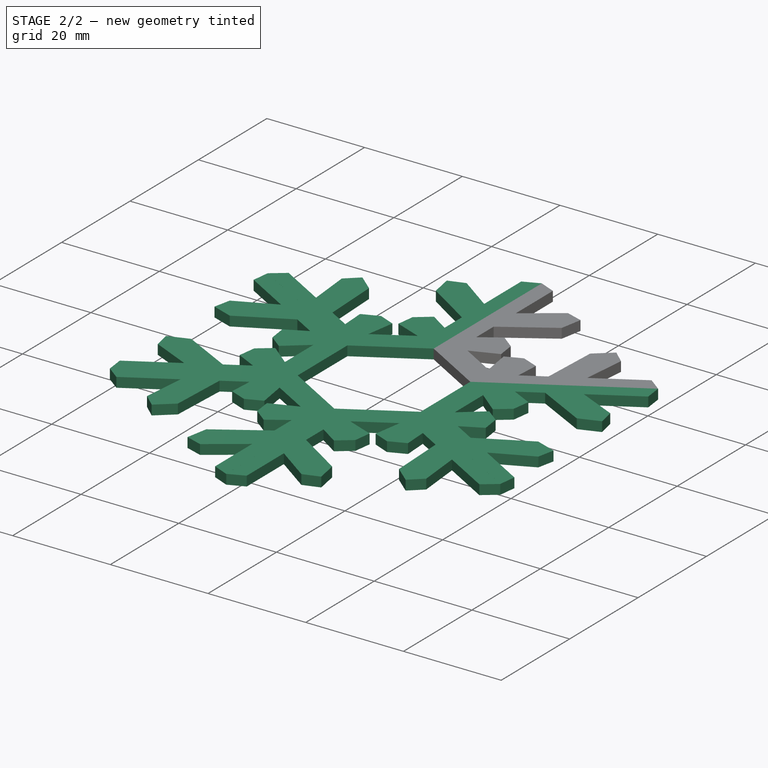
[diagram: stage 2 of 2 — iso view after this stage's code; geometry added in this stage tinted green]
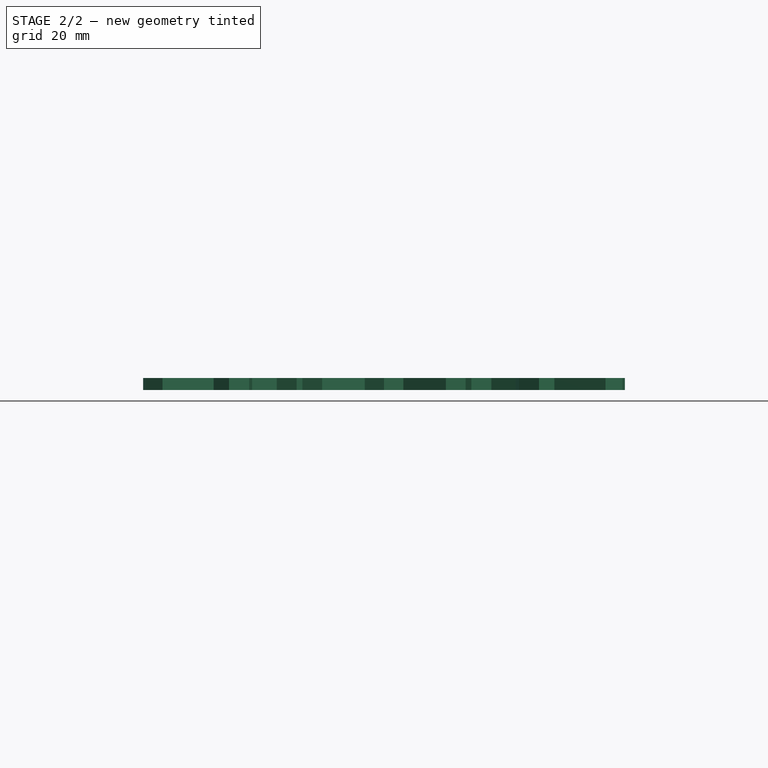
[diagram: stage 2 of 2 — front view after this stage's code; geometry added in this stage tinted green]
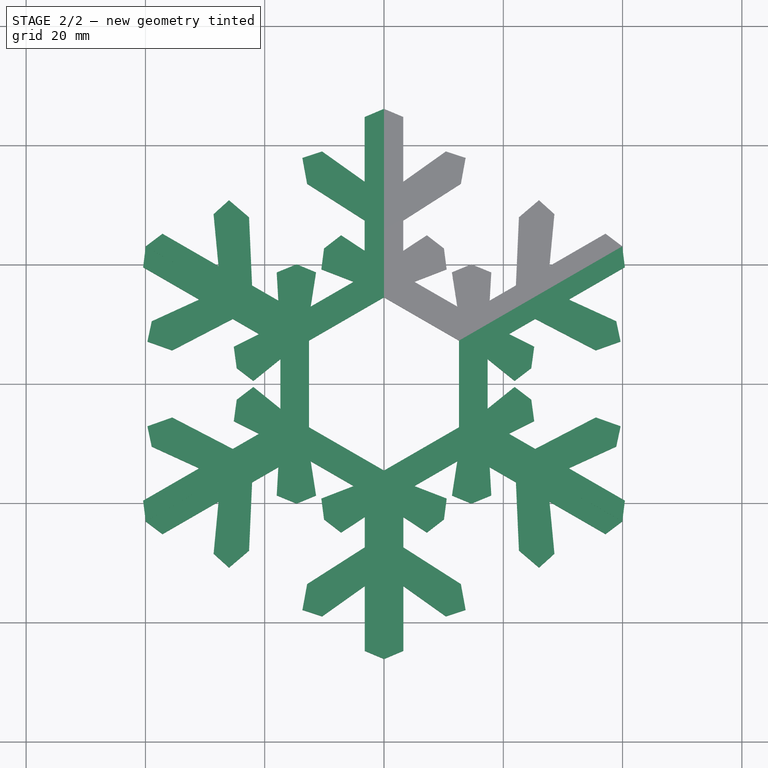
[diagram: stage 2 of 2 — top view after this stage's code; geometry added in this stage tinted green]
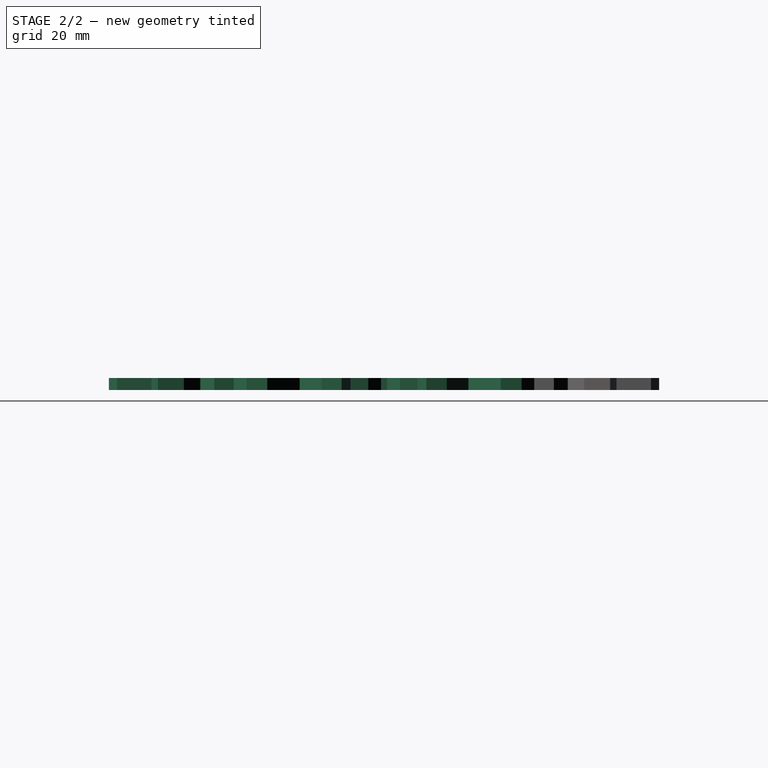
[diagram: stage 2 of 2 — right view after this stage's code; geometry added in this stage tinted green]
FEATURE [PartDesign::PolarPattern] PolarPattern
  Angle = 360
  Axis = -> Sketch008 [N_Axis]
  BaseFeature = -> Pad
  Occurrences = 6
  Originals = -> [Pad]
FEATURE [Sketcher::SketchObject] Sketch009  label="SnowflakePinSketch"
  FullyConstrained = true
  MapMode = 5
  Support = -> [DatumPlane]
  expr: Constraints[18] = Spreadsheet.dim_hex_r
  sketch-geometry (66):
    g0: LineSegment StartX=-0.00337745 StartY=14.5267 StartZ=0 EndX=-12.5818 EndY=7.2611 EndZ=0
    g1: LineSegment StartX=-12.5818 StartY=7.2611 StartZ=0 EndX=-12.5796 EndY=-7.265 EndZ=0
    g2: LineSegment StartX=-12.5796 StartY=-7.265 StartZ=0 EndX=0.00112582 EndY=-14.5268 EndZ=0
    g3: LineSegment StartX=0.00112582 StartY=-14.5268 StartZ=0 EndX=12.5807 EndY=-7.26305 EndZ=0
    g4: LineSegment StartX=12.5807 StartY=-7.26305 StartZ=0 EndX=12.5807 EndY=7.26305 EndZ=0
    g5: Circle CenterX=0 CenterY=0 CenterZ=0 NormalX=0 NormalY=0 NormalZ=1 AngleXU=0 Radius=14.5268
    g6: LineSegment StartX=-0.00337745 StartY=46.1267 StartZ=0 EndX=3.23662 EndY=44.7567 EndZ=0
    g7: LineSegment StartX=3.23662 StartY=44.7567 StartZ=0 EndX=3.23662 EndY=33.9067 EndZ=0
    g8: LineSegment StartX=3.23662 StartY=33.9067 StartZ=0 EndX=10.3672 EndY=38.9779 EndZ=0
    g9: LineSegment StartX=10.3672 StartY=38.9779 StartZ=0 EndX=13.6784 EndY=37.9029 EndZ=0
    g10: LineSegment StartX=13.6784 StartY=37.9029 StartZ=0 EndX=12.8825 EndY=33.5637 EndZ=0
    g11: LineSegment StartX=12.8825 StartY=33.5637 StartZ=0 EndX=3.23662 EndY=27.4067 EndZ=0
    g12: LineSegment StartX=3.23662 StartY=27.4067 StartZ=0 EndX=3.23662 EndY=22.3267 EndZ=0
    g13: LineSegment StartX=3.23662 StartY=22.3267 StartZ=0 EndX=7.18818 EndY=24.9264 EndZ=0
    g14: LineSegment StartX=7.18818 StartY=24.9264 StartZ=0 EndX=10.0479 EndY=22.7141 EndZ=0
    g15: LineSegment StartX=10.0479 StartY=22.7141 StartZ=0 EndX=10.5061 EndY=19.221 EndZ=0
    g16: LineSegment StartX=10.5061 StartY=19.221 StartZ=0 EndX=5.08662 EndY=17.1267 EndZ=0
    g17: LineSegment StartX=12.2862 StartY=12.9711 StartZ=0 EndX=11.389 EndY=18.7114 EndZ=0
    g18: LineSegment StartX=11.389 StartY=18.7114 StartZ=0 EndX=14.6429 EndY=20.0618 EndZ=0
    g19: LineSegment StartX=14.6429 StartY=20.0618 StartZ=0 EndX=17.9889 EndY=18.6921 EndZ=0
    g20: LineSegment StartX=17.9889 StartY=18.6921 StartZ=0 EndX=17.7143 EndY=13.97 EndZ=0
    g21: LineSegment StartX=17.7143 StartY=13.97 StartZ=0 EndX=22.1132 EndY=16.5109 EndZ=0
    g22: LineSegment StartX=22.1132 StartY=16.5109 StartZ=0 EndX=22.62 EndY=27.943 EndZ=0
    g23: LineSegment StartX=22.62 StartY=27.943 StartZ=0 EndX=25.9793 EndY=30.8026 EndZ=0
    g24: LineSegment StartX=25.9793 StartY=30.8026 StartZ=0 EndX=28.5664 EndY=28.4732 EndZ=0
    g25: LineSegment StartX=28.5664 StartY=28.4732 StartZ=0 EndX=27.7417 EndY=19.7621 EndZ=0
    g26: LineSegment StartX=27.7417 StartY=19.7621 StartZ=0 EndX=37.137 EndY=25.189 EndZ=0
    g27: LineSegment StartX=37.137 StartY=25.189 StartZ=0 EndX=39.9439 EndY=23.0687 EndZ=0
    g28: LineSegment StartX=5.08662 StartY=17.1267 StartZ=0 EndX=8.68642 EndY=15.0489 EndZ=0
    g29: LineSegment StartX=8.68642 StartY=15.0489 StartZ=0 EndX=12.2862 EndY=12.9711 EndZ=0
    g30: LineSegment StartX=12.5807 StartY=7.26305 StartZ=0 EndX=6.28867 EndY=10.8949 EndZ=0
    g31: LineSegment StartX=6.28867 StartY=10.8949 StartZ=0 EndX=-0.00337745 EndY=14.5267 EndZ=0
    g32: LineSegment StartX=8.68642 StartY=15.0489 StartZ=0 EndX=6.28867 EndY=10.8949 EndZ=0
    g33: LineSegment StartX=-0.00337745 StartY=44.7567 StartZ=0 EndX=-0.00337745 EndY=46.1267 EndZ=0
    g34: LineSegment StartX=-0.00337745 StartY=33.9067 StartZ=0 EndX=-0.00337745 EndY=44.7567 EndZ=0
    g35: LineSegment StartX=-0.00337745 StartY=27.4067 StartZ=0 EndX=-0.00337745 EndY=33.9067 EndZ=0
    g36: LineSegment StartX=29.3623 StartY=16.9565 StartZ=0 EndX=23.7338 EndY=13.7054 EndZ=0
    g37: LineSegment StartX=39.9439 StartY=23.0687 StartZ=0 EndX=38.7575 EndY=22.3835 EndZ=0
    g38: LineSegment StartX=38.7575 StartY=22.3835 StartZ=0 EndX=29.3623 EndY=16.9565 EndZ=0
    g39: LineSegment StartX=23.7338 StartY=13.7054 StartZ=0 EndX=19.3349 EndY=11.1644 EndZ=0
    g40: LineSegment StartX=19.3349 StartY=11.1644 StartZ=0 EndX=14.8321 EndY=8.56352 EndZ=0
    g41: LineSegment StartX=14.8321 StartY=8.56352 StartZ=0 EndX=12.5807 EndY=7.26305 EndZ=0
    g42: LineSegment StartX=-0.00337745 StartY=22.3267 StartZ=0 EndX=-0.00337745 EndY=27.4067 EndZ=0
    g43: LineSegment StartX=-0.00337745 StartY=14.5267 StartZ=0 EndX=-0.00337745 EndY=17.1267 EndZ=0
    g44: LineSegment StartX=-0.00337745 StartY=17.1267 StartZ=0 EndX=-0.00337745 EndY=22.3267 EndZ=0
    g45: LineSegment StartX=-0.00337745 StartY=17.1267 StartZ=0 EndX=5.08662 EndY=17.1267 EndZ=0
    g46: LineSegment StartX=-0.00337745 StartY=22.3267 StartZ=0 EndX=3.23662 EndY=22.3267 EndZ=0
    g47: LineSegment StartX=12.2862 StartY=12.9711 StartZ=0 EndX=14.8321 EndY=8.56352 EndZ=0
    g48: LineSegment StartX=17.7143 StartY=13.97 StartZ=0 EndX=19.3349 EndY=11.1644 EndZ=0
    g49: LineSegment StartX=22.1132 StartY=16.5109 StartZ=0 EndX=23.7338 EndY=13.7054 EndZ=0
    g50: LineSegment StartX=27.7417 StartY=19.7621 StartZ=0 EndX=29.3623 EndY=16.9565 EndZ=0
    g51: LineSegment StartX=37.137 StartY=25.189 StartZ=0 EndX=38.7575 EndY=22.3835 EndZ=0
    g52: LineSegment StartX=-0.00337745 StartY=44.7567 StartZ=0 EndX=3.23662 EndY=44.7567 EndZ=0
    g53: LineSegment StartX=-0.00337745 StartY=33.9067 StartZ=0 EndX=3.23662 EndY=33.9067 EndZ=0
    g54: LineSegment StartX=-0.00337745 StartY=27.4067 StartZ=0 EndX=3.23662 EndY=27.4067 EndZ=0
    g55: LineSegment StartX=3.23662 StartY=33.9067 StartZ=0 EndX=3.23662 EndY=27.4067 EndZ=0
    g56: LineSegment StartX=22.1132 StartY=16.5109 StartZ=0 EndX=27.7417 EndY=19.7621 EndZ=0
    g57: LineSegment StartX=10.3672 StartY=38.9779 StartZ=0 EndX=11.3657 EndY=36.8286 EndZ=0
    g58: LineSegment StartX=11.3657 StartY=36.8286 StartZ=0 EndX=12.8825 EndY=33.5637 EndZ=0
    g59: LineSegment StartX=11.3657 StartY=36.8286 StartZ=0 EndX=13.6784 EndY=37.9029 EndZ=0
    g60: LineSegment StartX=7.18818 StartY=24.9264 StartZ=0 EndX=8.87225 EndY=22.0305 EndZ=0
    g61: LineSegment StartX=10.5061 StartY=19.221 StartZ=0 EndX=8.87225 EndY=22.0305 EndZ=0
    g62: LineSegment StartX=8.87225 StartY=22.0305 StartZ=0 EndX=10.0479 EndY=22.7141 EndZ=0
    g63: LineSegment StartX=11.389 StartY=18.7114 StartZ=0 EndX=14.6389 EndY=18.7019 EndZ=0
    g64: LineSegment StartX=14.6389 StartY=18.7019 StartZ=0 EndX=17.9889 EndY=18.6921 EndZ=0
    g65: LineSegment StartX=14.6389 StartY=18.7019 StartZ=0 EndX=14.6429 EndY=20.0618 EndZ=0
  constraints (179):
    c: Coincident(g0,g1)
    c: Coincident(g1,g2)
    c: Coincident(g2,g3)
    c: Coincident(g3,g4)
    c: Coincident(g4,g30)
    c: Coincident(g31,g0)
    c: Equal(g0, g1-g4) x4
    c: PointOnObject(g0,g5)
    c: PointOnObject(g1,g5)
    c: PointOnObject(g2,g5)
    c: PointOnObject(g3,g5)
    c: PointOnObject(g4,g5)
    c: PointOnObject(g31,g5)
    c: Coincident(g5,g-1)
    c: Vertical(g4)
    c: DistanceY(g1,g1) = 14.5261
    c: Coincident(g31,g43)
    c: Coincident(g33,g6)
    c: Coincident(g6,g7)
    c: Vertical(g7)
    c: Coincident(g7,g8)
    c: Coincident(g8,g9)
    c: Coincident(g9,g10)
    c: Coincident(g10,g11)
    c: Coincident(g11,g12)
    c: Vertical(g12)
    c: Coincident(g12,g13)
    c: Coincident(g13,g14)
    c: Coincident(g14,g15)
    c: Coincident(g15,g16)
    c: Coincident(g16,g28)
    c: Coincident(g29,g17)
    c: Coincident(g17,g18)
    c: Coincident(g18,g19)
    c: Coincident(g19,g20)
    c: Coincident(g20,g21)
    c: Coincident(g21,g22)
    c: Coincident(g22,g23)
    c: Coincident(g23,g24)
    c: Coincident(g24,g25)
    c: Coincident(g25,g26)
    c: Coincident(g26,g27)
    c: Coincident(g27,g37)
    c: Coincident(g41,g30)
    c: Equal(g7,g26)
    c: Equal(g25,g8)
    c: Equal(g11,g22)
    c: Equal(g16,g17)
    c: Coincident(g28,g29)
    c: Distance(g31,g30) = 14.53
    c: Coincident(g30,g31)
    c: Equal(g30,g31)
    c: Coincident(g32,g28)
    c: Coincident(g32,g30)
    c: Perpendicular(g31,g32)
    c: Perpendicular(g28,g32)
    c: Parallel(g29,g28)
    c: Parallel(g30,g31)
    c: Equal(g28,g29)
    c: Equal(g18,g15)
    c: Equal(g19,g14)
    c: Equal(g20,g13)
    c: Equal(g21,g12)
    c: Equal(g10,g23)
    c: Equal(g9,g24)
    c: Equal(g27,g6)
    c: Coincident(g34,g33)
    c: Vertical(g33)
    c: Coincident(g35,g34)
    c: Vertical(g34)
    c: Coincident(g42,g35)
    c: Vertical(g35)
    c: Coincident(g36,g39)
    c: Coincident(g38,g36)
    c: Coincident(g37,g38)
    c: Coincident(g39,g40)
    c: Coincident(g40,g41)
    c: Coincident(g44,g42)
    c: Vertical(g42)
    c: Coincident(g43,g44)
    c: Vertical(g43)
    c: Vertical(g44)
    c: Equal(g41,g43)
    c: Coincident(g45,g43)
    c: Coincident(g45,g16)
    c: Horizontal(g45)
    c: Coincident(g46,g42)
    c: Coincident(g46,g12)
    c: Horizontal(g46)
    c: Equal(g42,g39)
    c: Equal(g40,g44)
    c: Equal(g34,g38)
    c: Equal(g37,g33)
    c: Parallel(g37,g38)
    c: Parallel(g38,g36)
    c: Parallel(g36,g39)
    c: Parallel(g39,g40)
    c: Parallel(g41,g40)
    c: Coincident(g47,g17)
    c: Coincident(g47,g40)
    c: Perpendicular(g41,g47)
    c: Coincident(g48,g20)
    c: Coincident(g48,g39)
    c: Coincident(g49,g21)
    c: Coincident(g49,g36)
    c: Coincident(g50,g25)
    c: Coincident(g50,g36)
    c: Coincident(g51,g26)
    c: Coincident(g51,g37)
    c: Coincident(g52,g33)
    c: Coincident(g52,g6)
    c: Coincident(g53,g34)
    c: Coincident(g53,g7)
    c: Coincident(g54,g35)
    c: Coincident(g54,g11)
    c: Perpendicular(g42,g54)
    c: Perpendicular(g35,g53)
    c: Perpendicular(g34,g52)
    c: DistanceY(g43,g43) = 2.6
    c: Perpendicular(g40,g48)
    c: Perpendicular(g39,g49)
    c: Perpendicular(g36,g50)
    c: Perpendicular(g38,g51)
    c: DistanceY(g44,g44) = 5.2
    c: DistanceX(g46,g46) = 3.24
    c: DistanceX(g45,g45) = 5.09
    c: DistanceY(g42,g42) = 5.08
    c: DistanceY(g35,g35) = 6.5
    c: Coincident(g55,g7)
    c: Coincident(g55,g11)
    c: Vertical(g55)
    c: Coincident(g56,g21)
    c: Coincident(g56,g25)
    c: Parallel(g56,g26)
    c: Equal(g36,g35)
    c: Angle(g11,g55) = 1.00269
    c: Angle(g56,g22) = 1.00269
    c: Angle(g26,g25) = 0.952601
    c: Angle(g8,g7) = 0.952601
    c: Coincident(g57,g8)
    c: Coincident(g58,g57)
    c: Coincident(g58,g10)
    c: Coincident(g59,g57)
    c: Coincident(g59,g9)
    c: Parallel(g57,g58)
    c: Perpendicular(g58,g59)
    c: Distance(g8,g10) = 5.97
    c: Distance(g59) = 2.55
    c: Distance(g11) = 11.4433
    c: Distance(g8) = 8.75
    c: Distance(g58) = 3.6
    c: Coincident(g60,g13)
    c: Coincident(g61,g15)
    c: Coincident(g61,g60)
    c: Coincident(g62,g60)
    c: Coincident(g62,g14)
    c: Parallel(g61,g60)
    c: Perpendicular(g61,g62)
    c: Distance(g13,g15) = 6.6
    c: Distance(g13) = 4.73
    c: Distance(g16) = 5.81
    c: Distance(g62) = 1.36
    c: Angle(g13,g12) = 0.988904
    c: Distance(g60) = 3.35
    c: Distance(g61) = 3.25
    c: Angle(g28,g16) = 0.892249
    c: Angle(g21,g20) = 0.988904
    c: Coincident(g63,g17)
    c: Coincident(g64,g63)
    c: Coincident(g64,g19)
    c: Coincident(g65,g63)
    c: Coincident(g65,g18)
    c: Parallel(g63,g64)
    c: Perpendicular(g63,g65)
    c: Distance(g63) = 3.25
    c: DistanceY(g34,g34) = 10.85
    c: DistanceY(g33,g33) = 1.37
    c: DistanceX(g31,g31) = 6.29205
    c: DistanceX(g52,g52) = 3.24
FEATURE [PartDesign::Body] Body
  Group = -> [DatumPlane,Sketch001,DatumPlane001,Sketch,Sketch002,Sketch004,Sketch005,Sketch006,Sketch007,Sketch008,Pad,PolarPattern,Sketch009]
  Origin = -> Origin
  Tip = -> PolarPattern
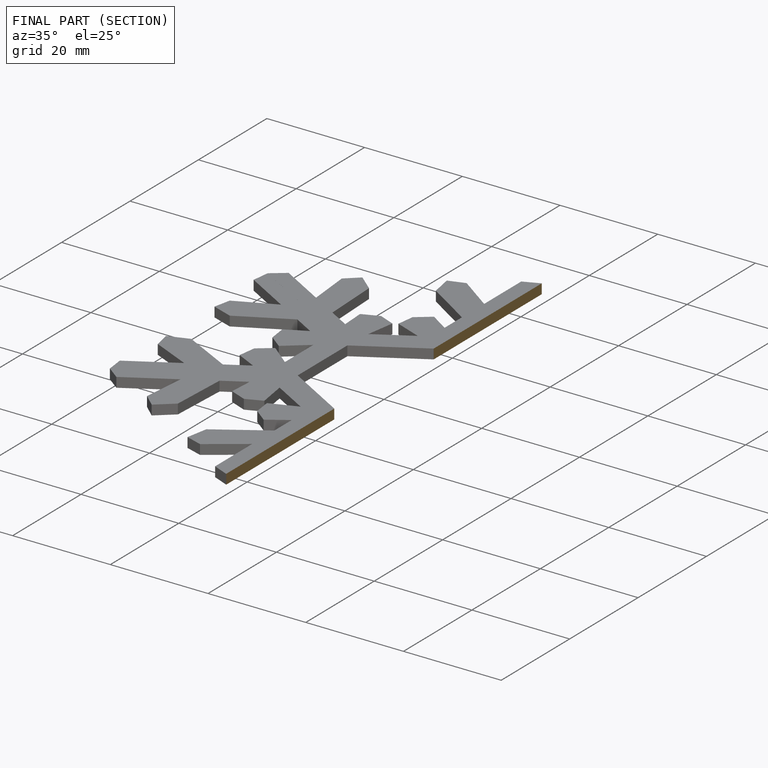
[diagram: finished part — half-section view (interior)]
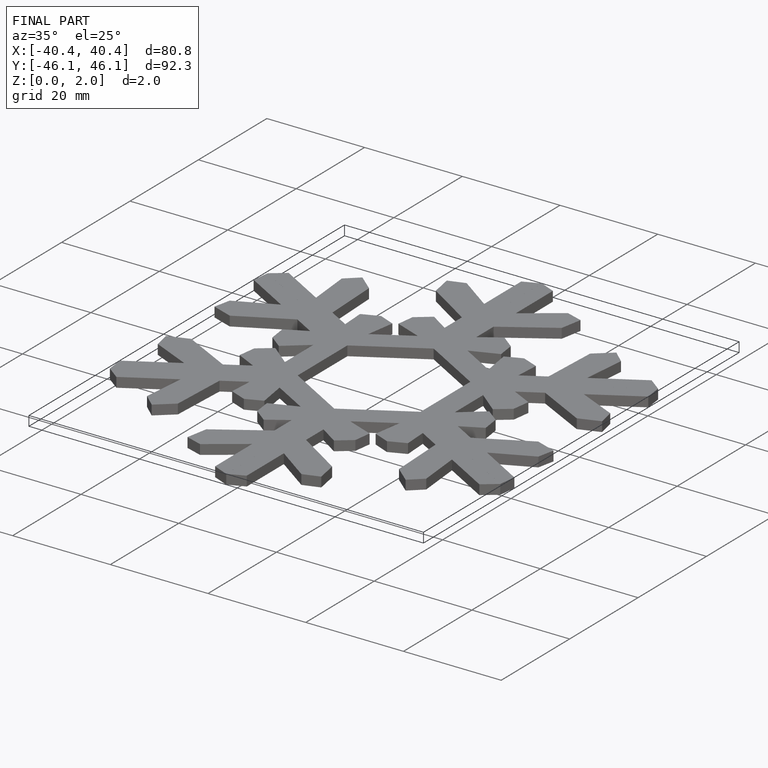
[diagram: finished part — iso view with bounding-box wireframe]
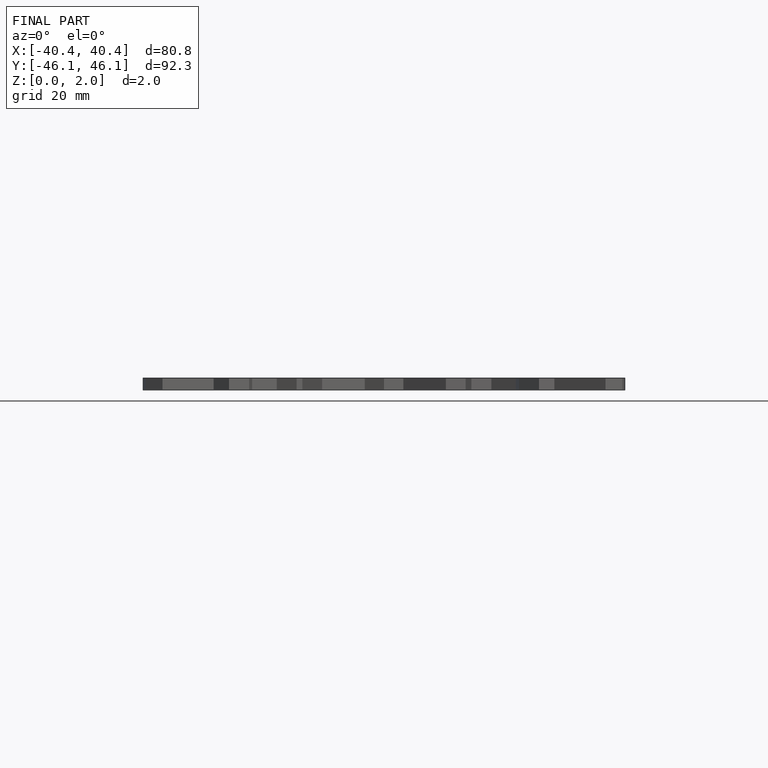
[diagram: finished part — front view with bounding-box wireframe]
